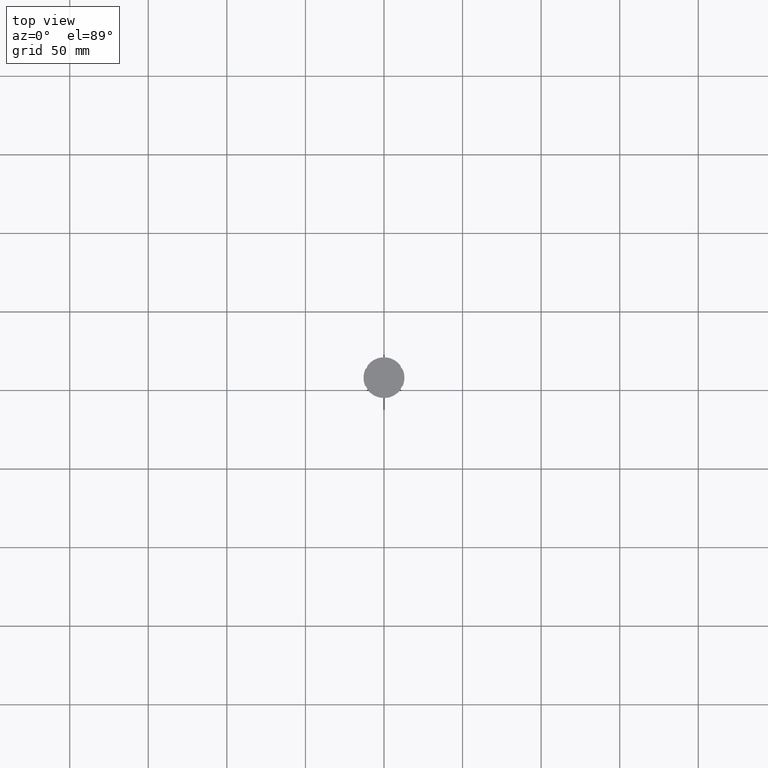
[diagram: clean part render]
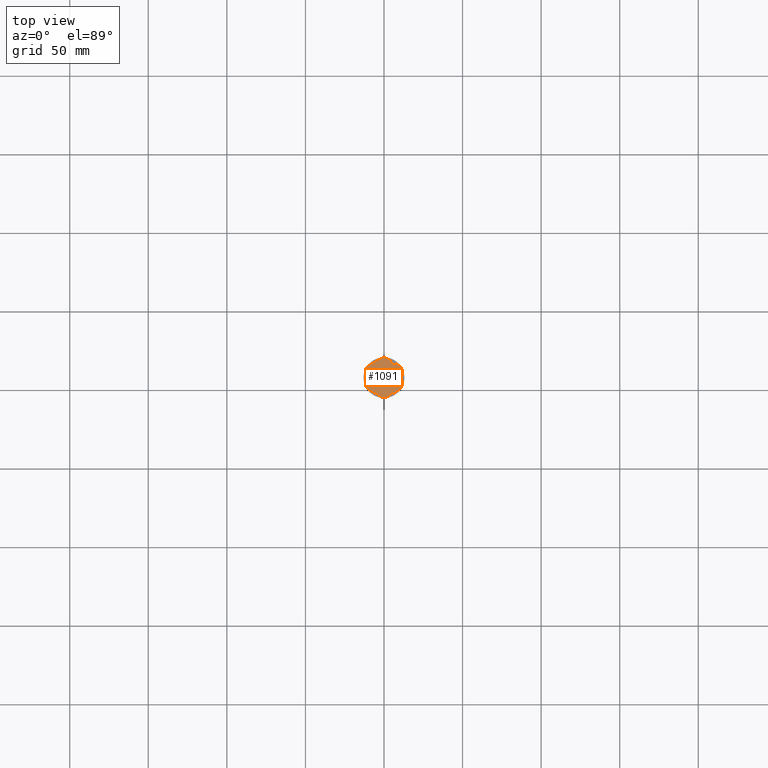
[diagram: same view with one face highlighted and labeled with its STEP entity id]
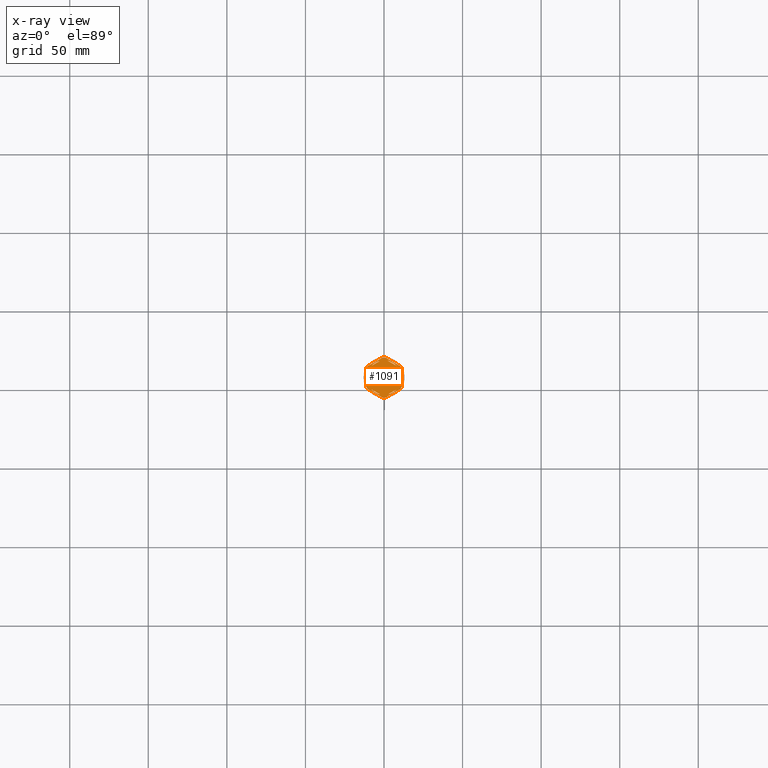
[diagram: x-ray of the same camera — body ghosted, the highlighted face saturated]
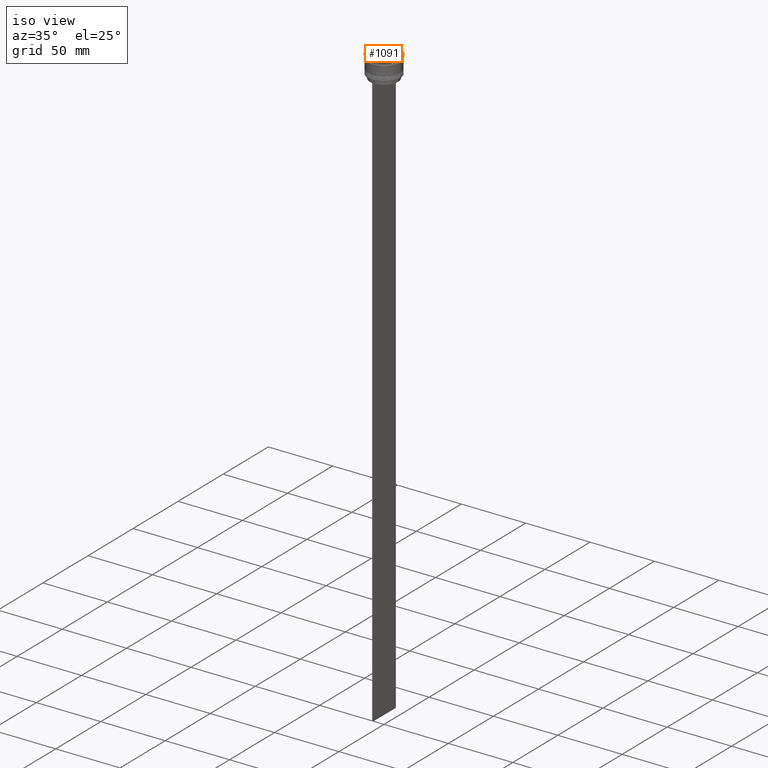
[diagram: same view with one face highlighted and labeled with its STEP entity id]
A machine part, top view. The second image highlights one B-rep face of the part: STEP entity #1091.
The next image is the same camera in x-ray: the body ghosted, the highlighted face saturated — about 0% of this face is hidden behind the body in this view.
A second angle (iso view) of the same face is appended — the face is thin or edge-on in the first view.
In plain terms, the highlighted planar face has unit normal (0, 0, 1).
Its self-contained STEP definition (entity closure, byte-faithful):
#2 = CARTESIAN_POINT ( 'NONE',  ( 0.000000000000000000, 0.000000000000000000, -1.000000000000000000 ) ) ;
#4 = CIRCLE ( 'NONE', #197, 12.69999999999999929 ) ;
#10 = CIRCLE ( 'NONE', #1911, 11.00000000000000000 ) ;
#12 = CARTESIAN_POINT ( 'NONE',  ( 10.41690475583121156, 7.264853426459550789, -1.000000000000000000 ) ) ;
#56 = AXIS2_PLACEMENT_3D ( 'NONE', #1641, #544, #1423 ) ;
#64 = CARTESIAN_POINT ( 'NONE',  ( 11.49999999999999822, -5.388877434122996135, -1.000000000000000000 ) ) ;
#68 = CARTESIAN_POINT ( 'NONE',  ( -10.41690475583121689, 7.264853426459546348, -1.000000000000000000 ) ) ;
#79 = ORIENTED_EDGE ( 'NONE', *, *, #1577, .T. ) ;
#110 = DIRECTION ( 'NONE',  ( 0.000000000000000000, 0.000000000000000000, 1.000000000000000000 ) ) ;
#111 = VERTEX_POINT ( 'NONE', #1768 ) ;
#135 = EDGE_CURVE ( 'NONE', #358, #2568, #392, .T. ) ;
#136 = CARTESIAN_POINT ( 'NONE',  ( -11.50000000000000000, -5.388877434122992582, -1.000000000000000000 ) ) ;
#137 = VERTEX_POINT ( 'NONE', #136 ) ;
#165 = EDGE_CURVE ( 'NONE', #548, #2182, #2367, .T. ) ;
#176 = ORIENTED_EDGE ( 'NONE', *, *, #1400, .F. ) ;
#181 = EDGE_CURVE ( 'NONE', #2247, #2009, #1047, .T. ) ;
#197 = AXIS2_PLACEMENT_3D ( 'NONE', #319, #2284, #1671 ) ;
#215 = ORIENTED_EDGE ( 'NONE', *, *, #909, .F. ) ;
#220 = CARTESIAN_POINT ( 'NONE',  ( 0.000000000000000000, 0.000000000000000000, -1.000000000000000000 ) ) ;
#225 = EDGE_LOOP ( 'NONE', ( #911, #2497 ) ) ;
#234 = ORIENTED_EDGE ( 'NONE', *, *, #2459, .T. ) ;
#244 = VECTOR ( 'NONE', #2139, 1000.000000000000000 ) ;
#256 = CARTESIAN_POINT ( 'NONE',  ( 10.49999999999999467, 3.278719262151012170, -1.000000000000000888 ) ) ;
#258 = CARTESIAN_POINT ( 'NONE',  ( 10.49999999999999289, -6.062177826491073063, -1.000000000000000888 ) ) ;
#282 = AXIS2_PLACEMENT_3D ( 'NONE', #1408, #498, #1838 ) ;
#292 = EDGE_CURVE ( 'NONE', #2856, #1817, #1297, .T. ) ;
#297 = EDGE_CURVE ( 'NONE', #1493, #2710, #1252, .T. ) ;
#308 = DIRECTION ( 'NONE',  ( 1.000000000000000000, 0.000000000000000000, 0.000000000000000000 ) ) ;
#319 = CARTESIAN_POINT ( 'NONE',  ( 0.000000000000000000, 0.000000000000000000, -1.000000000000000000 ) ) ;
#329 = AXIS2_PLACEMENT_3D ( 'NONE', #1134, #1377, #486 ) ;
#346 = ORIENTED_EDGE ( 'NONE', *, *, #181, .F. ) ;
#348 = CARTESIAN_POINT ( 'NONE',  ( -10.49999999999999822, 6.062177826491068622, -1.000000000000000888 ) ) ;
#350 = FACE_BOUND ( 'NONE', #485, .T. ) ;
#352 = EDGE_CURVE ( 'NONE', #358, #1936, #2264, .T. ) ;
#355 = ORIENTED_EDGE ( 'NONE', *, *, #165, .F. ) ;
#358 = VERTEX_POINT ( 'NONE', #1283 ) ;
#370 = DIRECTION ( 'NONE',  ( 1.000000000000000000, 0.000000000000000000, 0.000000000000000000 ) ) ;
#381 = FACE_BOUND ( 'NONE', #1277, .T. ) ;
#392 = LINE ( 'NONE', #820, #2261 ) ;
#402 = CARTESIAN_POINT ( 'NONE',  ( -1.083095244168779780, -12.65373086058253982, -1.000000000000000000 ) ) ;
#413 = CARTESIAN_POINT ( 'NONE',  ( -10.41690475583121334, -7.264853426459548125, -1.000000000000000000 ) ) ;
#415 = ORIENTED_EDGE ( 'NONE', *, *, #1503, .F. ) ;
#418 = DIRECTION ( 'NONE',  ( -0.000000000000000000, -0.000000000000000000, -1.000000000000000000 ) ) ;
#446 = CARTESIAN_POINT ( 'NONE',  ( 0.000000000000000000, 0.000000000000000000, -1.000000000000000000 ) ) ;
#485 = EDGE_LOOP ( 'NONE', ( #1744, #355 ) ) ;
#486 = DIRECTION ( 'NONE',  ( 1.000000000000000000, 0.000000000000000000, 0.000000000000000000 ) ) ;
#487 = EDGE_CURVE ( 'NONE', #2710, #1493, #2738, .T. ) ;
#494 = CARTESIAN_POINT ( 'NONE',  ( 0.000000000000000000, 13.27905619136138959, -1.000000000000000000 ) ) ;
#498 = DIRECTION ( 'NONE',  ( 0.000000000000000000, 0.000000000000000000, 1.000000000000000000 ) ) ;
#510 = VECTOR ( 'NONE', #598, 1000.000000000000000 ) ;
#541 = CARTESIAN_POINT ( 'NONE',  ( 8.089454172900135021, -7.453907108661109504, -1.000000000000000888 ) ) ;
#544 = DIRECTION ( 'NONE',  ( 0.000000000000000000, 0.000000000000000000, 1.000000000000000000 ) ) ;
#548 = VERTEX_POINT ( 'NONE', #2237 ) ;
#564 = EDGE_CURVE ( 'NONE', #1007, #1325, #2248, .T. ) ;
#576 = CARTESIAN_POINT ( 'NONE',  ( -8.089454172900135021, 7.453907108661106840, -1.000000000000000888 ) ) ;
#578 = FACE_BOUND ( 'NONE', #830, .T. ) ;
#585 = CARTESIAN_POINT ( 'NONE',  ( 0.000000000000000000, 0.000000000000000000, -1.000000000000000000 ) ) ;
#598 = DIRECTION ( 'NONE',  ( 0.8660254037844385966, 0.5000000000000001110, -0.000000000000000000 ) ) ;
#603 = DIRECTION ( 'NONE',  ( 1.306360520641008153E-16, 1.000000000000000000, 0.000000000000000000 ) ) ;
#621 = ORIENTED_EDGE ( 'NONE', *, *, #1405, .T. ) ;
#626 = LINE ( 'NONE', #2199, #1018 ) ;
#634 = CARTESIAN_POINT ( 'NONE',  ( -11.50000000000000000, 5.388877434122992582, -1.000000000000000000 ) ) ;
#659 = VECTOR ( 'NONE', #2297, 1000.000000000000000 ) ;
#665 = VECTOR ( 'NONE', #925, 1000.000000000000114 ) ;
#674 = ORIENTED_EDGE ( 'NONE', *, *, #2401, .F. ) ;
#706 = CIRCLE ( 'NONE', #888, 11.00000000000000000 ) ;
#746 = ORIENTED_EDGE ( 'NONE', *, *, #564, .F. ) ;
#754 = DIRECTION ( 'NONE',  ( 0.000000000000000000, 0.000000000000000000, 1.000000000000000000 ) ) ;
#767 = LINE ( 'NONE', #1643, #2090 ) ;
#789 = AXIS2_PLACEMENT_3D ( 'NONE', #2, #2454, #2679 ) ;
#808 = CARTESIAN_POINT ( 'NONE',  ( 10.49999999999999467, 6.062177826491072175, -1.000000000000000888 ) ) ;
#817 = VERTEX_POINT ( 'NONE', #2378 ) ;
#820 = CARTESIAN_POINT ( 'NONE',  ( 5.612359739892467248E-18, -13.27905619136138959, -1.000000000000000000 ) ) ;
#830 = EDGE_LOOP ( 'NONE', ( #1692, #2804, #674 ) ) ;
#832 = CARTESIAN_POINT ( 'NONE',  ( -10.49999999999999822, -6.062177826491068622, -1.000000000000000888 ) ) ;
#863 = EDGE_CURVE ( 'NONE', #1999, #137, #2457, .T. ) ;
#888 = AXIS2_PLACEMENT_3D ( 'NONE', #1114, #1997, #2243 ) ;
#900 = CARTESIAN_POINT ( 'NONE',  ( -11.50000000000000000, 6.639528095680691244, -1.000000000000000000 ) ) ;
#904 = DIRECTION ( 'NONE',  ( -0.8660254037844384856, 0.5000000000000002220, 0.000000000000000000 ) ) ;
#909 = EDGE_CURVE ( 'NONE', #2009, #2247, #2788, .T. ) ;
#910 = CARTESIAN_POINT ( 'NONE',  ( 0.000000000000000000, 0.000000000000000000, -1.000000000000000000 ) ) ;
#911 = ORIENTED_EDGE ( 'NONE', *, *, #292, .F. ) ;
#925 = DIRECTION ( 'NONE',  ( -0.8660254037844385966, -0.5000000000000001110, 0.000000000000000000 ) ) ;
#926 = LINE ( 'NONE', #900, #1996 ) ;
#934 = DIRECTION ( 'NONE',  ( -1.430775808321104180E-16, -1.000000000000000000, 0.000000000000000000 ) ) ;
#1007 = VERTEX_POINT ( 'NONE', #256 ) ;
#1008 = FACE_BOUND ( 'NONE', #225, .T. ) ;
#1018 = VECTOR ( 'NONE', #1097, 999.9999999999998863 ) ;
#1047 = LINE ( 'NONE', #832, #1890 ) ;
#1050 = CARTESIAN_POINT ( 'NONE',  ( 0.000000000000000000, 0.000000000000000000, -1.000000000000000000 ) ) ;
#1057 = CARTESIAN_POINT ( 'NONE',  ( -8.089454172900133244, -7.453907108661111280, -1.000000000000000888 ) ) ;
#1070 = AXIS2_PLACEMENT_3D ( 'NONE', #446, #418, #1745 ) ;
#1073 = AXIS2_PLACEMENT_3D ( 'NONE', #910, #2240, #2670 ) ;
#1082 = DIRECTION ( 'NONE',  ( 1.000000000000000000, 0.000000000000000000, 0.000000000000000000 ) ) ;
#1091 = ADVANCED_FACE ( 'NONE', ( #350, #1851, #1008, #381, #578, #1647, #2108 ), #1264, .T. ) ;
#1092 = EDGE_LOOP ( 'NONE', ( #1776, #2143, #79, #415, #1714, #2189, #621, #2336, #234, #2272, #2437, #2704 ) ) ;
#1094 = DIRECTION ( 'NONE',  ( -0.000000000000000000, -0.000000000000000000, -1.000000000000000000 ) ) ;
#1097 = DIRECTION ( 'NONE',  ( -0.8660254037844387076, -0.4999999999999999445, 0.000000000000000000 ) ) ;
#1114 = CARTESIAN_POINT ( 'NONE',  ( 0.000000000000000000, 0.000000000000000000, -1.000000000000000000 ) ) ;
#1122 = CIRCLE ( 'NONE', #1073, 12.69999999999999929 ) ;
#1134 = CARTESIAN_POINT ( 'NONE',  ( 0.000000000000000000, 0.000000000000000000, -1.000000000000000000 ) ) ;
#1149 = EDGE_LOOP ( 'NONE', ( #176, #746 ) ) ;
#1174 = CARTESIAN_POINT ( 'NONE',  ( 0.000000000000000000, 0.000000000000000000, -1.000000000000000000 ) ) ;
#1189 = EDGE_CURVE ( 'NONE', #1817, #2856, #626, .T. ) ;
#1206 = AXIS2_PLACEMENT_3D ( 'NONE', #220, #2188, #1504 ) ;
#1252 = LINE ( 'NONE', #2089, #510 ) ;
#1255 = DIRECTION ( 'NONE',  ( 0.8660254037844387076, -0.4999999999999999445, 0.000000000000000000 ) ) ;
#1264 = PLANE ( 'NONE',  #1618 ) ;
#1273 = CARTESIAN_POINT ( 'NONE',  ( 10.41690475583121867, -7.264853426459537467, -1.000000000000000000 ) ) ;
#1276 = CARTESIAN_POINT ( 'NONE',  ( 11.49999999999999822, -6.639528095680694797, -1.000000000000000000 ) ) ;
#1277 = EDGE_LOOP ( 'NONE', ( #215, #346 ) ) ;
#1283 = CARTESIAN_POINT ( 'NONE',  ( 1.083095244168774673, -12.65373086058253982, -1.000000000000000000 ) ) ;
#1297 = CIRCLE ( 'NONE', #2077, 11.00000000000000000 ) ;
#1299 = LINE ( 'NONE', #1734, #244 ) ;
#1322 = DIRECTION ( 'NONE',  ( 0.8660254037844385966, 0.4999999999999999445, 0.000000000000000000 ) ) ;
#1325 = VERTEX_POINT ( 'NONE', #1330 ) ;
#1330 = CARTESIAN_POINT ( 'NONE',  ( 10.49999999999999467, -3.278719262151014835, -1.000000000000000888 ) ) ;
#1361 = ORIENTED_EDGE ( 'NONE', *, *, #297, .F. ) ;
#1366 = VERTEX_POINT ( 'NONE', #2040 ) ;
#1377 = DIRECTION ( 'NONE',  ( 0.000000000000000000, 0.000000000000000000, 1.000000000000000000 ) ) ;
#1400 = EDGE_CURVE ( 'NONE', #1325, #1007, #706, .T. ) ;
#1401 = VERTEX_POINT ( 'NONE', #12 ) ;
#1405 = EDGE_CURVE ( 'NONE', #1630, #137, #926, .T. ) ;
#1408 = CARTESIAN_POINT ( 'NONE',  ( 0.000000000000000000, 0.000000000000000000, -1.000000000000000000 ) ) ;
#1423 = DIRECTION ( 'NONE',  ( 1.000000000000000000, 0.000000000000000000, 0.000000000000000000 ) ) ;
#1473 = EDGE_CURVE ( 'NONE', #1366, #2055, #2565, .T. ) ;
#1493 = VERTEX_POINT ( 'NONE', #576 ) ;
#1503 = EDGE_CURVE ( 'NONE', #2407, #111, #4, .T. ) ;
#1504 = DIRECTION ( 'NONE',  ( 1.000000000000000000, 7.105427357601001859E-15, 0.000000000000000000 ) ) ;
#1577 = EDGE_CURVE ( 'NONE', #1401, #111, #1299, .T. ) ;
#1604 = EDGE_CURVE ( 'NONE', #2147, #2568, #2180, .T. ) ;
#1618 = AXIS2_PLACEMENT_3D ( 'NONE', #2539, #2749, #2081 ) ;
#1620 = VECTOR ( 'NONE', #603, 1000.000000000000000 ) ;
#1621 = EDGE_CURVE ( 'NONE', #2147, #817, #1700, .T. ) ;
#1630 = VERTEX_POINT ( 'NONE', #634 ) ;
#1641 = CARTESIAN_POINT ( 'NONE',  ( 0.000000000000000000, 0.000000000000000000, -1.000000000000000000 ) ) ;
#1643 = CARTESIAN_POINT ( 'NONE',  ( -11.50000000000000000, -6.639528095680696573, -1.000000000000000000 ) ) ;
#1647 = FACE_BOUND ( 'NONE', #2012, .T. ) ;
#1671 = DIRECTION ( 'NONE',  ( 1.000000000000000000, 1.243449787580175325E-14, 0.000000000000000000 ) ) ;
#1692 = ORIENTED_EDGE ( 'NONE', *, *, #2392, .F. ) ;
#1700 = LINE ( 'NONE', #1276, #1620 ) ;
#1714 = ORIENTED_EDGE ( 'NONE', *, *, #2422, .T. ) ;
#1734 = CARTESIAN_POINT ( 'NONE',  ( 11.50000000000000000, 6.639528095680698350, -1.000000000000000000 ) ) ;
#1744 = ORIENTED_EDGE ( 'NONE', *, *, #2112, .F. ) ;
#1745 = DIRECTION ( 'NONE',  ( 1.000000000000000000, -1.776356839400250465E-14, 0.000000000000000000 ) ) ;
#1768 = CARTESIAN_POINT ( 'NONE',  ( 1.083095244168781557, 12.65373086058254160, -1.000000000000000000 ) ) ;
#1776 = ORIENTED_EDGE ( 'NONE', *, *, #1621, .T. ) ;
#1779 = DIRECTION ( 'NONE',  ( 0.000000000000000000, -1.000000000000000000, 0.000000000000000000 ) ) ;
#1803 = VECTOR ( 'NONE', #934, 1000.000000000000000 ) ;
#1808 = EDGE_CURVE ( 'NONE', #1630, #2397, #1122, .T. ) ;
#1817 = VERTEX_POINT ( 'NONE', #541 ) ;
#1834 = CARTESIAN_POINT ( 'NONE',  ( 0.000000000000000000, 0.000000000000000000, -1.000000000000000000 ) ) ;
#1838 = DIRECTION ( 'NONE',  ( 1.000000000000000000, 0.000000000000000000, 0.000000000000000000 ) ) ;
#1851 = FACE_BOUND ( 'NONE', #1149, .T. ) ;
#1866 = CARTESIAN_POINT ( 'NONE',  ( -1.083095244168783333, 12.65373086058254160, -1.000000000000000000 ) ) ;
#1868 = ORIENTED_EDGE ( 'NONE', *, *, #487, .F. ) ;
#1890 = VECTOR ( 'NONE', #904, 1000.000000000000000 ) ;
#1911 = AXIS2_PLACEMENT_3D ( 'NONE', #1174, #754, #308 ) ;
#1934 = CARTESIAN_POINT ( 'NONE',  ( -11.00000000000000000, 0.000000000000000000, -1.000000000000000000 ) ) ;
#1936 = VERTEX_POINT ( 'NONE', #402 ) ;
#1996 = VECTOR ( 'NONE', #1779, 1000.000000000000000 ) ;
#1997 = DIRECTION ( 'NONE',  ( 0.000000000000000000, 0.000000000000000000, 1.000000000000000000 ) ) ;
#1999 = VERTEX_POINT ( 'NONE', #413 ) ;
#2009 = VERTEX_POINT ( 'NONE', #1057 ) ;
#2010 = CARTESIAN_POINT ( 'NONE',  ( -2.410545827099876082, -10.73262637081210435, -1.000000000000000888 ) ) ;
#2012 = EDGE_LOOP ( 'NONE', ( #1868, #1361 ) ) ;
#2040 = CARTESIAN_POINT ( 'NONE',  ( -10.49999999999999822, -3.278719262151000624, -1.000000000000000888 ) ) ;
#2048 = CIRCLE ( 'NONE', #2660, 11.00000000000000000 ) ;
#2055 = VERTEX_POINT ( 'NONE', #2281 ) ;
#2077 = AXIS2_PLACEMENT_3D ( 'NONE', #585, #110, #370 ) ;
#2081 = DIRECTION ( 'NONE',  ( 1.000000000000000000, 0.000000000000000000, -0.000000000000000000 ) ) ;
#2084 = AXIS2_PLACEMENT_3D ( 'NONE', #1050, #1094, #1082 ) ;
#2087 = CIRCLE ( 'NONE', #56, 11.00000000000000000 ) ;
#2089 = CARTESIAN_POINT ( 'NONE',  ( -1.734723475976807094E-15, 12.12435565298214080, -1.000000000000000888 ) ) ;
#2090 = VECTOR ( 'NONE', #2535, 1000.000000000000227 ) ;
#2108 = FACE_OUTER_BOUND ( 'NONE', #1092, .T. ) ;
#2112 = EDGE_CURVE ( 'NONE', #2182, #548, #2087, .T. ) ;
#2139 = DIRECTION ( 'NONE',  ( -0.8660254037844388186, 0.4999999999999997224, 0.000000000000000000 ) ) ;
#2143 = ORIENTED_EDGE ( 'NONE', *, *, #2641, .F. ) ;
#2147 = VERTEX_POINT ( 'NONE', #64 ) ;
#2180 = CIRCLE ( 'NONE', #2084, 12.69999999999999929 ) ;
#2182 = VERTEX_POINT ( 'NONE', #2685 ) ;
#2188 = DIRECTION ( 'NONE',  ( -0.000000000000000000, -0.000000000000000000, -1.000000000000000000 ) ) ;
#2189 = ORIENTED_EDGE ( 'NONE', *, *, #1808, .F. ) ;
#2199 = CARTESIAN_POINT ( 'NONE',  ( -2.602085213965210642E-15, -12.12435565298214080, -1.000000000000000888 ) ) ;
#2223 = CARTESIAN_POINT ( 'NONE',  ( -2.410545827099867200, 10.73262637081210613, -1.000000000000000888 ) ) ;
#2237 = CARTESIAN_POINT ( 'NONE',  ( 2.410545827099861871, 10.73262637081210791, -1.000000000000000888 ) ) ;
#2240 = DIRECTION ( 'NONE',  ( -0.000000000000000000, -0.000000000000000000, -1.000000000000000000 ) ) ;
#2243 = DIRECTION ( 'NONE',  ( 1.000000000000000000, 0.000000000000000000, 0.000000000000000000 ) ) ;
#2247 = VERTEX_POINT ( 'NONE', #2010 ) ;
#2248 = LINE ( 'NONE', #258, #1803 ) ;
#2261 = VECTOR ( 'NONE', #1322, 1000.000000000000114 ) ;
#2264 = CIRCLE ( 'NONE', #789, 12.69999999999999929 ) ;
#2272 = ORIENTED_EDGE ( 'NONE', *, *, #352, .F. ) ;
#2281 = CARTESIAN_POINT ( 'NONE',  ( -10.49999999999999822, 3.278719262151000624, -1.000000000000000888 ) ) ;
#2284 = DIRECTION ( 'NONE',  ( -0.000000000000000000, -0.000000000000000000, -1.000000000000000000 ) ) ;
#2297 = DIRECTION ( 'NONE',  ( 0.000000000000000000, 1.000000000000000000, 0.000000000000000000 ) ) ;
#2336 = ORIENTED_EDGE ( 'NONE', *, *, #863, .F. ) ;
#2367 = LINE ( 'NONE', #808, #2783 ) ;
#2378 = CARTESIAN_POINT ( 'NONE',  ( 11.49999999999999822, 5.388877434122992582, -1.000000000000000000 ) ) ;
#2392 = EDGE_CURVE ( 'NONE', #2055, #2580, #10, .T. ) ;
#2397 = VERTEX_POINT ( 'NONE', #68 ) ;
#2401 = EDGE_CURVE ( 'NONE', #2580, #1366, #2048, .T. ) ;
#2407 = VERTEX_POINT ( 'NONE', #1866 ) ;
#2422 = EDGE_CURVE ( 'NONE', #2407, #2397, #2522, .T. ) ;
#2437 = ORIENTED_EDGE ( 'NONE', *, *, #135, .T. ) ;
#2454 = DIRECTION ( 'NONE',  ( -0.000000000000000000, -0.000000000000000000, -1.000000000000000000 ) ) ;
#2457 = CIRCLE ( 'NONE', #1206, 12.69999999999999929 ) ;
#2459 = EDGE_CURVE ( 'NONE', #1999, #1936, #767, .T. ) ;
#2477 = DIRECTION ( 'NONE',  ( 0.000000000000000000, 0.000000000000000000, 1.000000000000000000 ) ) ;
#2485 = CARTESIAN_POINT ( 'NONE',  ( 2.410545827099865868, -10.73262637081210791, -1.000000000000000888 ) ) ;
#2497 = ORIENTED_EDGE ( 'NONE', *, *, #1189, .F. ) ;
#2504 = DIRECTION ( 'NONE',  ( 1.000000000000000000, 0.000000000000000000, 0.000000000000000000 ) ) ;
#2522 = LINE ( 'NONE', #494, #665 ) ;
#2535 = DIRECTION ( 'NONE',  ( 0.8660254037844387076, -0.4999999999999997780, 0.000000000000000000 ) ) ;
#2539 = CARTESIAN_POINT ( 'NONE',  ( 0.000000000000000000, 0.000000000000000000, -1.000000000000000000 ) ) ;
#2565 = LINE ( 'NONE', #348, #659 ) ;
#2568 = VERTEX_POINT ( 'NONE', #1273 ) ;
#2580 = VERTEX_POINT ( 'NONE', #1934 ) ;
#2641 = EDGE_CURVE ( 'NONE', #1401, #817, #2754, .T. ) ;
#2660 = AXIS2_PLACEMENT_3D ( 'NONE', #1834, #2477, #2504 ) ;
#2670 = DIRECTION ( 'NONE',  ( 1.000000000000000000, 0.000000000000000000, 0.000000000000000000 ) ) ;
#2679 = DIRECTION ( 'NONE',  ( 1.000000000000000000, 0.000000000000000000, 0.000000000000000000 ) ) ;
#2685 = CARTESIAN_POINT ( 'NONE',  ( 8.089454172900138573, 7.453907108661105063, -1.000000000000000888 ) ) ;
#2704 = ORIENTED_EDGE ( 'NONE', *, *, #1604, .F. ) ;
#2710 = VERTEX_POINT ( 'NONE', #2223 ) ;
#2738 = CIRCLE ( 'NONE', #282, 11.00000000000000000 ) ;
#2749 = DIRECTION ( 'NONE',  ( 0.000000000000000000, 0.000000000000000000, 1.000000000000000000 ) ) ;
#2754 = CIRCLE ( 'NONE', #1070, 12.69999999999999929 ) ;
#2783 = VECTOR ( 'NONE', #1255, 999.9999999999998863 ) ;
#2788 = CIRCLE ( 'NONE', #329, 11.00000000000000000 ) ;
#2804 = ORIENTED_EDGE ( 'NONE', *, *, #1473, .F. ) ;
#2856 = VERTEX_POINT ( 'NONE', #2485 ) ;